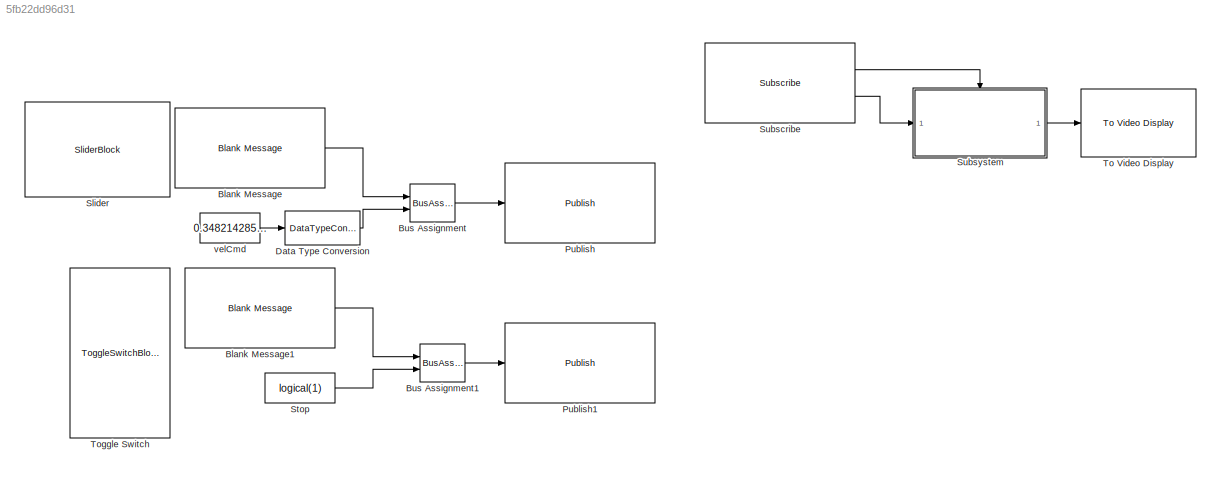
MODEL slx_5fb22dd96d31
KIND model
CONFIG AbsTol = auto
CONFIG EnableMultiTasking = off
CONFIG FixedStep = auto
CONFIG MaxStep = auto
CONFIG MinStep = auto
CONFIG RelTol = 1e-3
CONFIG SampleTimeConstraint = Unconstrained
CONFIG SolverName = FixedStepAuto
CONFIG StartTime = 0.0
CONFIG StopTime = Inf
WORKSPACE source: mxarray member
WORKSPACE SL_ROS_VariableLengthArrays_MaxSizes: object (value not decoded)
BLOCK [Reference] Blank Message  REF=robotlib/Blank Message
  Ports = [0, 1]
  SourceBlock = robotlib/Blank Message
  SourceProductBaseCode = RR
  SourceType = ROS Blank Message
BLOCK [Reference] Blank Message1  REF=robotlib/Blank Message
  Ports = [0, 1]
  SourceBlock = robotlib/Blank Message
  SourceProductBaseCode = RR
  SourceType = ROS Blank Message
BLOCK [BusAssignment] Bus Assignment
  AssignedSignals = Data
  Ports = [2, 1]
BLOCK [BusAssignment] Bus Assignment1
  AssignedSignals = Data
  Ports = [2, 1]
BLOCK [DataTypeConversion] Data Type Conversion
  OutDataTypeStr = single
  RndMeth = Floor
  SaturateOnIntegerOverflow = off
BLOCK [Reference] Publish  REF=robotlib/Publish
  Ports = [1]
  SourceBlock = robotlib/Publish
  SourceProductBaseCode = RR
  SourceType = ROS Publish
BLOCK [Reference] Publish1  REF=robotlib/Publish
  Ports = [1]
  SourceBlock = robotlib/Publish
  SourceProductBaseCode = RR
  SourceType = ROS Publish
BLOCK [SliderBlock] Slider
  ScaleMax = 1
BLOCK [Constant] Stop
  SampleTime = -1
  Value = logical(1)
BLOCK [Reference] Subscribe  REF=robotlib/Subscribe
  Ports = [0, 2]
  SourceBlock = robotlib/Subscribe
  SourceProductBaseCode = RR
  SourceType = ROS Subscribe
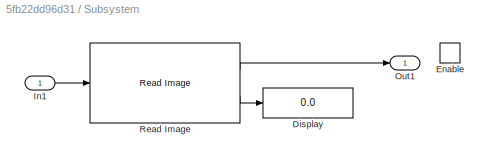
BLOCK [SubSystem] Subsystem
  Ports = [1, 1, 1]
  RequestExecContextInheritance = off
BLOCK [Display] Subsystem/Display
  Decimation = 1
  Ports = [1]
BLOCK [EnablePort] Subsystem/Enable
  Ports = []
BLOCK [Inport] Subsystem/In1
BLOCK [Outport] Subsystem/Out1
BLOCK [Reference] Subsystem/Read Image  REF=robotlib/Read Image
  Ports = [1, 2]
  SourceBlock = robotlib/Read Image
  SourceProductBaseCode = RR
  SourceType = ros.slros.internal.block.ReadImage
BLOCK [Reference] To Video Display  REF=visionsinks/To Video Display
  Ports = [1]
  SourceBlock = visionsinks/To Video Display
  SourceProductBaseCode = VP
  SourceType = To Video Display
BLOCK [ToggleSwitchBlock] Toggle Switch
BLOCK [Constant] velCmd
  SampleTime = -1
  Value = 0.3482142857142857
LINE Blank Message1:1 -> Bus Assignment1:1
LINE Blank Message:1 -> Bus Assignment:1
LINE Bus Assignment1:1 -> Publish1:1
LINE Bus Assignment:1 -> Publish:1
LINE Data Type Conversion:1 -> Bus Assignment:2
LINE Stop:1 -> Bus Assignment1:2
LINE Subscribe:1 -> Subsystem:enable
LINE Subscribe:2 -> Subsystem:1
LINE Subsystem/In1:1 -> Subsystem/Read Image:1
LINE Subsystem/Read Image:1 -> Subsystem/Out1:1
LINE Subsystem/Read Image:2 -> Subsystem/Display:1
LINE Subsystem:1 -> To Video Display:1
LINE velCmd:1 -> Data Type Conversion:1
